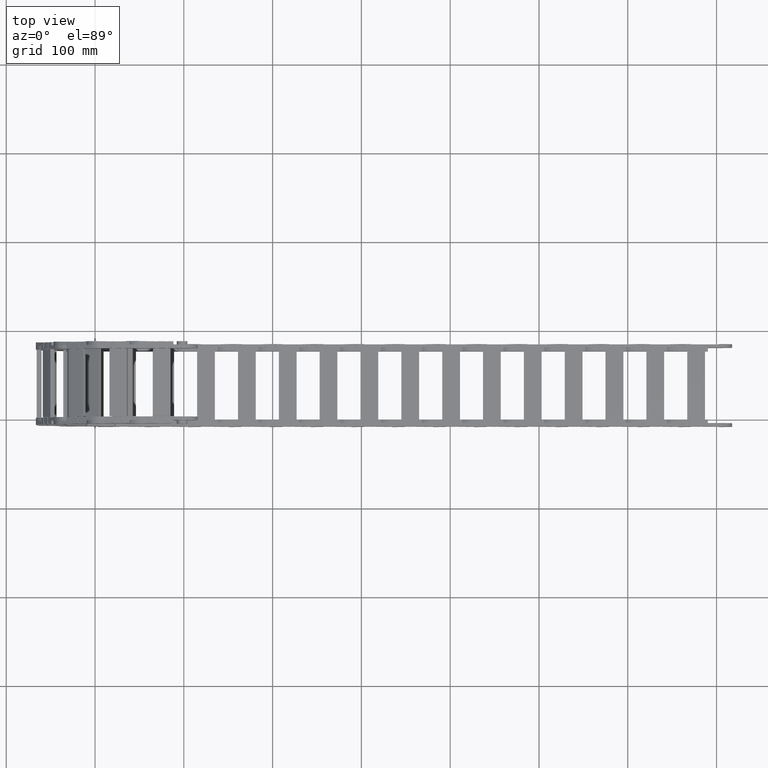
[diagram: clean part render]
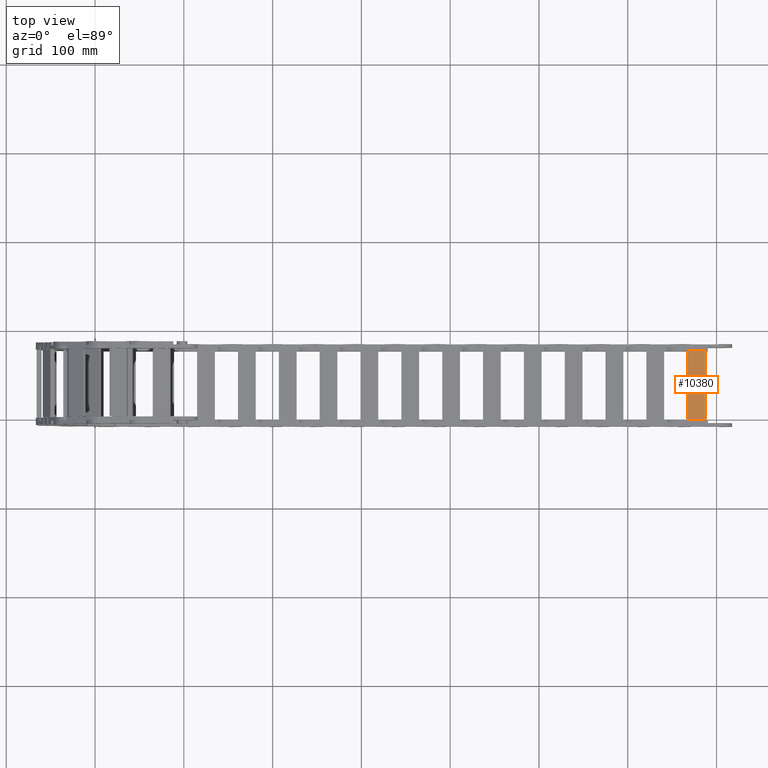
[diagram: same view with one face highlighted and labeled with its STEP entity id]
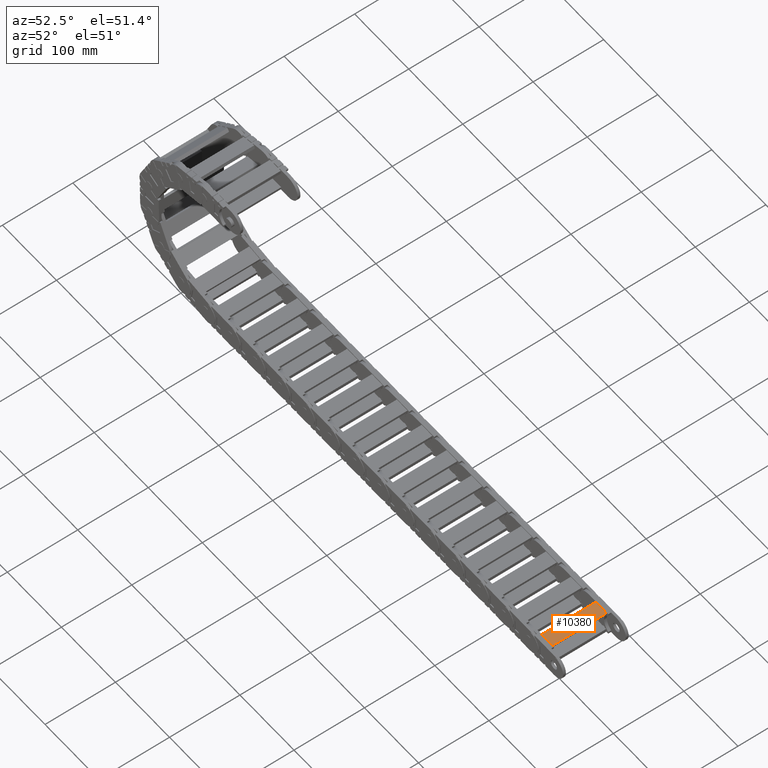
[diagram: same view with one face highlighted and labeled with its STEP entity id]
A machine part, top view. The second image highlights one B-rep face of the part: STEP entity #10380.
A second angle (auxiliary view) of the same face is appended — the face is thin or edge-on in the first view.
In plain terms, the highlighted planar face has unit normal (0, 0, -1).
Its self-contained STEP definition (entity closure, byte-faithful):
#2352 = CARTESIAN_POINT ( 'NONE',  ( -0.9055118110236221041, 1.515826771653543403, 0.6456692913385827515 ) ) ;
#3549 = DIRECTION ( 'NONE',  ( 0.000000000000000000, 1.000000000000000000, 0.000000000000000000 ) ) ;
#4291 = AXIS2_PLACEMENT_3D ( 'NONE', #2352, #26099, #49813 ) ;
#5605 = EDGE_LOOP ( 'NONE', ( #22051, #69827, #19422, #7498 ) ) ;
#7498 = ORIENTED_EDGE ( 'NONE', *, *, #33645, .T. ) ;
#8183 = FACE_OUTER_BOUND ( 'NONE', #5605, .T. ) ;
#8201 = CARTESIAN_POINT ( 'NONE',  ( -0.9055118110236221041, 0.0001181102362204767788, 0.6456692913385827515 ) ) ;
#10380 = ADVANCED_FACE ( 'NONE', ( #8183 ), #55654, .F. ) ;
#11106 = EDGE_CURVE ( 'NONE', #63166, #43680, #32798, .T. ) ;
#16043 = EDGE_CURVE ( 'NONE', #34551, #63166, #43622, .T. ) ;
#16696 = VECTOR ( 'NONE', #31938, 39.37007874015748143 ) ;
#18289 = LINE ( 'NONE', #47450, #55613 ) ;
#19422 = ORIENTED_EDGE ( 'NONE', *, *, #16043, .F. ) ;
#21902 = DIRECTION ( 'NONE',  ( 0.000000000000000000, 1.000000000000000000, 0.000000000000000000 ) ) ;
#22051 = ORIENTED_EDGE ( 'NONE', *, *, #40683, .T. ) ;
#22812 = CARTESIAN_POINT ( 'NONE',  ( -0.5118110236220472231, 0.0001181102362204767788, 0.6456692913385827515 ) ) ;
#24444 = VECTOR ( 'NONE', #3549, 39.37007874015748143 ) ;
#26099 = DIRECTION ( 'NONE',  ( 0.000000000000000000, 0.000000000000000000, -1.000000000000000000 ) ) ;
#31938 = DIRECTION ( 'NONE',  ( -1.000000000000000000, 0.000000000000000000, 0.000000000000000000 ) ) ;
#32798 = LINE ( 'NONE', #62361, #49174 ) ;
#33120 = CARTESIAN_POINT ( 'NONE',  ( -0.5118110236220472231, 1.515826771653543403, 0.6456692913385827515 ) ) ;
#33645 = EDGE_CURVE ( 'NONE', #34551, #56860, #57608, .T. ) ;
#34551 = VERTEX_POINT ( 'NONE', #22812 ) ;
#40683 = EDGE_CURVE ( 'NONE', #56860, #43680, #18289, .T. ) ;
#43622 = LINE ( 'NONE', #8201, #16696 ) ;
#43680 = VERTEX_POINT ( 'NONE', #46848 ) ;
#46848 = CARTESIAN_POINT ( 'NONE',  ( -1.299212598425196985, 3.031496062992125928, 0.6456692913385827515 ) ) ;
#47450 = CARTESIAN_POINT ( 'NONE',  ( -0.9055118110244960716, 3.031496062992125928, 0.6456692913385827515 ) ) ;
#49174 = VECTOR ( 'NONE', #21902, 39.37007874015748143 ) ;
#49813 = DIRECTION ( 'NONE',  ( 0.000000000000000000, -1.000000000000000000, 0.000000000000000000 ) ) ;
#55613 = VECTOR ( 'NONE', #71198, 39.37007874015748143 ) ;
#55654 = PLANE ( 'NONE',  #4291 ) ;
#56860 = VERTEX_POINT ( 'NONE', #59306 ) ;
#57608 = LINE ( 'NONE', #33120, #24444 ) ;
#59306 = CARTESIAN_POINT ( 'NONE',  ( -0.5118110236220472231, 3.031496062992125928, 0.6456692913385827515 ) ) ;
#62361 = CARTESIAN_POINT ( 'NONE',  ( -1.299212598425196985, 1.515826771653543403, 0.6456692913385827515 ) ) ;
#63166 = VERTEX_POINT ( 'NONE', #68276 ) ;
#68276 = CARTESIAN_POINT ( 'NONE',  ( -1.299212598425196985, 0.0001181102362204767788, 0.6456692913385827515 ) ) ;
#69827 = ORIENTED_EDGE ( 'NONE', *, *, #11106, .F. ) ;
#71198 = DIRECTION ( 'NONE',  ( -1.000000000000000000, 0.000000000000000000, 0.000000000000000000 ) ) ;